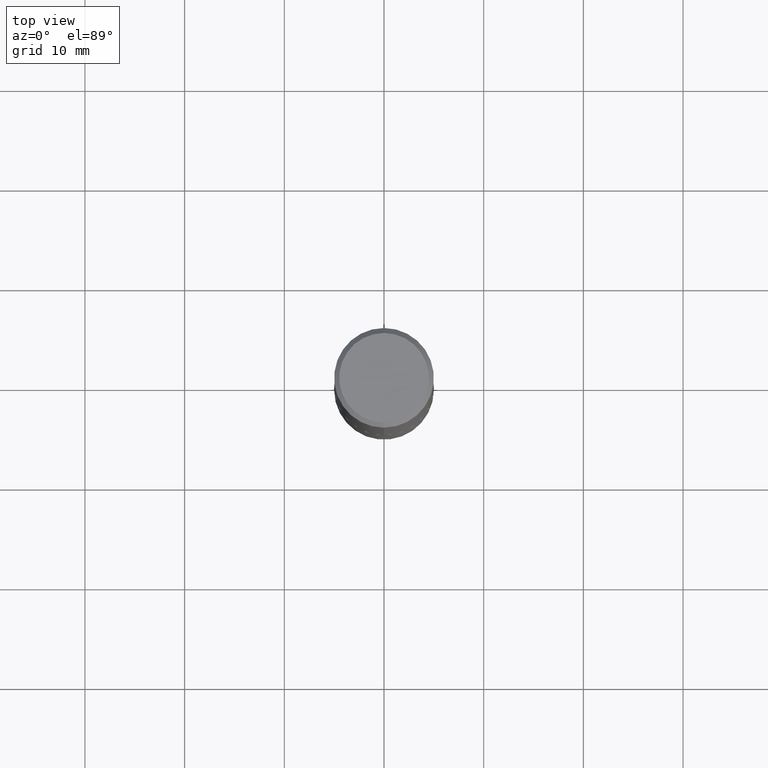
[diagram: clean part render]
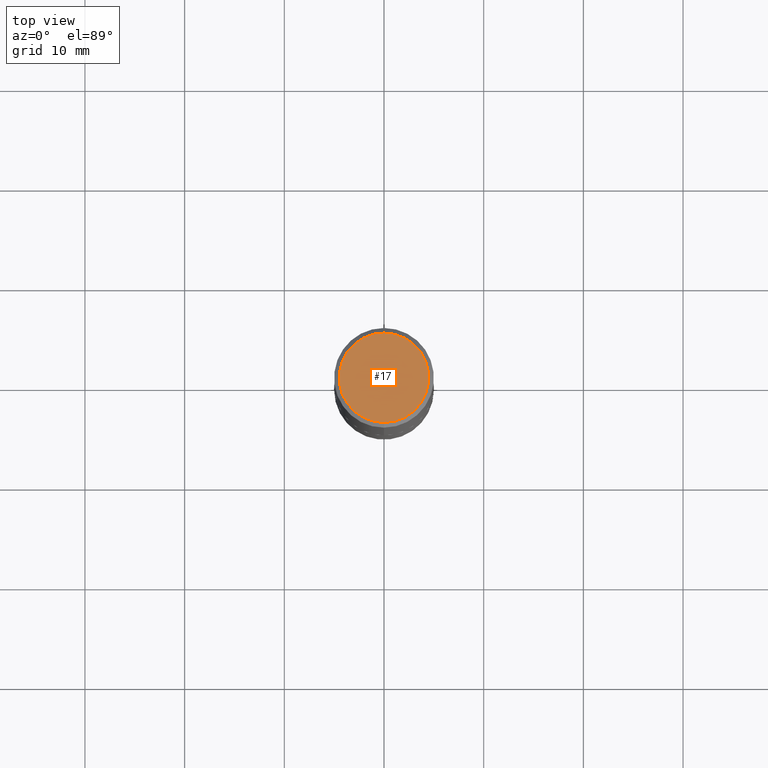
[diagram: same view with one face highlighted and labeled with its STEP entity id]
A machine part, top view. The second image highlights one B-rep face of the part: STEP entity #17.
In plain terms, the highlighted planar face has unit normal (0, -0, -1).
Its self-contained STEP definition (entity closure, byte-faithful):
#17 = ADVANCED_FACE ( 'NONE', ( #216 ), #177, .F. ) ;
#61 = EDGE_CURVE ( 'NONE', #196, #234, #296, .T. ) ;
#97 = EDGE_LOOP ( 'NONE', ( #391, #99 ) ) ;
#99 = ORIENTED_EDGE ( 'NONE', *, *, #190, .T. ) ;
#109 = AXIS2_PLACEMENT_3D ( 'NONE', #140, #245, #147 ) ;
#124 = DIRECTION ( 'NONE',  ( -2.447083294814932914E-29, 3.489169299234290962E-15, 1.000000000000000000 ) ) ;
#140 = CARTESIAN_POINT ( 'NONE',  ( 5.322760174831130967E-46, -7.589447988370287342E-32, -2.175144665532800578E-17 ) ) ;
#147 = DIRECTION ( 'NONE',  ( -6.982962677686265922E-15, -1.000000000000000000, 3.489169299234290962E-15 ) ) ;
#151 = CIRCLE ( 'NONE', #364, 0.1768500000000000627 ) ;
#171 = AXIS2_PLACEMENT_3D ( 'NONE', #411, #187, #308 ) ;
#177 = PLANE ( 'NONE',  #171 ) ;
#187 = DIRECTION ( 'NONE',  ( 2.447083294814932353E-29, -3.489169299234291357E-15, -1.000000000000000000 ) ) ;
#190 = EDGE_CURVE ( 'NONE', #234, #196, #151, .T. ) ;
#196 = VERTEX_POINT ( 'NONE', #253 ) ;
#216 = FACE_OUTER_BOUND ( 'NONE', #97, .T. ) ;
#234 = VERTEX_POINT ( 'NONE', #386 ) ;
#245 = DIRECTION ( 'NONE',  ( -2.447083294814932914E-29, 3.489169299234290962E-15, 1.000000000000000000 ) ) ;
#253 = CARTESIAN_POINT ( 'NONE',  ( 1.304766576325679099E-15, 0.1768500000000000627, -6.388110372249125976E-16 ) ) ;
#296 = CIRCLE ( 'NONE', #109, 0.1768500000000000627 ) ;
#308 = DIRECTION ( 'NONE',  ( 6.982962677686265922E-15, 1.000000000000000000, -3.489169299234291357E-15 ) ) ;
#325 = CARTESIAN_POINT ( 'NONE',  ( 5.322760174831130967E-46, -7.589447988370287342E-32, -2.175144665532800578E-17 ) ) ;
#353 = DIRECTION ( 'NONE',  ( -6.982962677686265922E-15, -1.000000000000000000, 3.489169299234290962E-15 ) ) ;
#364 = AXIS2_PLACEMENT_3D ( 'NONE', #325, #124, #353 ) ;
#386 = CARTESIAN_POINT ( 'NONE',  ( -1.281884050883610492E-15, -0.1768500000000000627, 5.953081439142565614E-16 ) ) ;
#391 = ORIENTED_EDGE ( 'NONE', *, *, #61, .T. ) ;
#411 = CARTESIAN_POINT ( 'NONE',  ( 1.234936949548816590E-15, 0.1768500000000000627, -6.279353138972485393E-16 ) ) ;